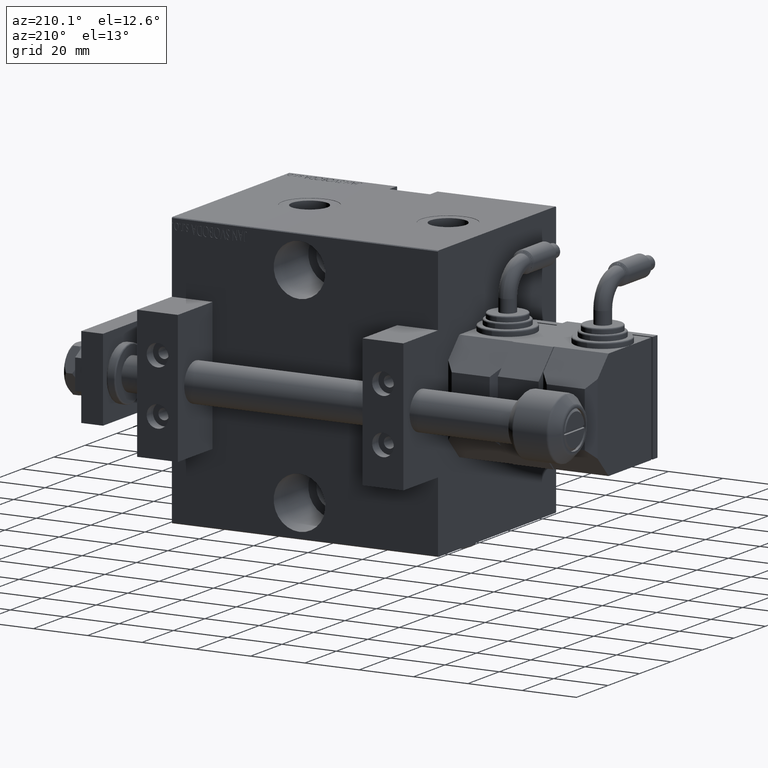
[diagram: clean part render]
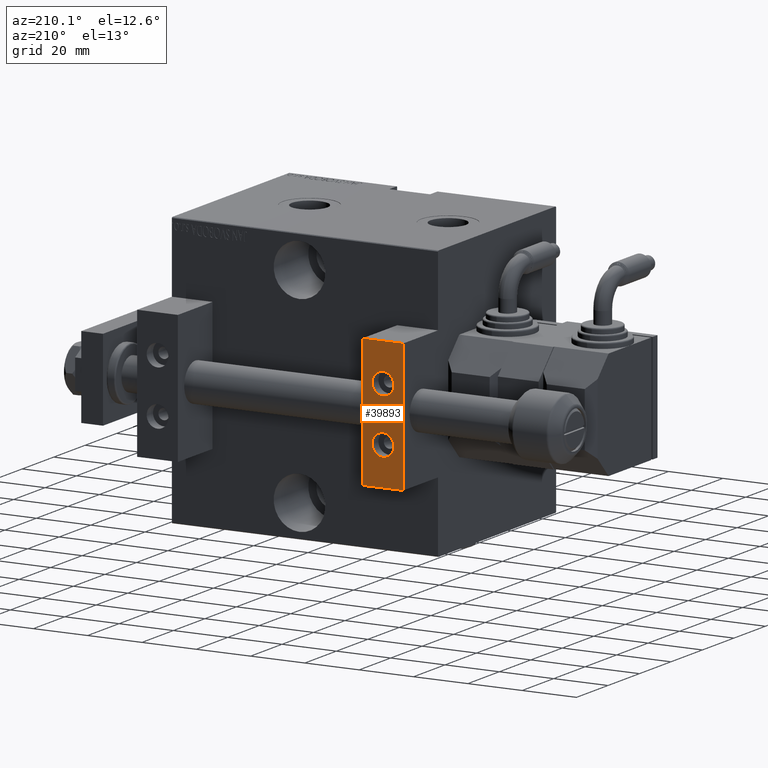
[diagram: same view with one face highlighted and labeled with its STEP entity id]
A machine part, auxiliary view. The second image highlights one B-rep face of the part: STEP entity #39893.
In plain terms, the highlighted planar face has unit normal (0, 1, 0).
Its self-contained STEP definition (entity closure, byte-faithful):
#608 = DIRECTION ( 'NONE',  ( 0.000000000000000000, 0.000000000000000000, 1.000000000000000000 ) ) ;
#1090 = AXIS2_PLACEMENT_3D ( 'NONE', #11851, #27658, #7958 ) ;
#1731 = CARTESIAN_POINT ( 'NONE',  ( 15.00000000000000000, 11.00000000000000355, 24.00000000000000711 ) ) ;
#3050 = PLANE ( 'NONE',  #1090 ) ;
#3723 = EDGE_CURVE ( 'NONE', #6100, #15285, #32963, .T. ) ;
#5107 = LINE ( 'NONE', #1731, #8745 ) ;
#6100 = VERTEX_POINT ( 'NONE', #14177 ) ;
#7586 = EDGE_CURVE ( 'NONE', #39028, #26604, #34290, .T. ) ;
#7958 = DIRECTION ( 'NONE',  ( 0.000000000000000000, -0.000000000000000000, 1.000000000000000000 ) ) ;
#8718 = DIRECTION ( 'NONE',  ( 0.000000000000000000, 0.000000000000000000, 1.000000000000000000 ) ) ;
#8745 = VECTOR ( 'NONE', #13149, 1000.000000000000000 ) ;
#8958 = VECTOR ( 'NONE', #42309, 1000.000000000000000 ) ;
#9226 = DIRECTION ( 'NONE',  ( 3.081487911019577365E-33, -1.000000000000000000, 4.418865812115433188E-17 ) ) ;
#9445 = DIRECTION ( 'NONE',  ( 0.000000000000000000, 1.000000000000000000, -6.065466699219605527E-17 ) ) ;
#10467 = CIRCLE ( 'NONE', #45242, 4.000000000000000888 ) ;
#10734 = VECTOR ( 'NONE', #49515, 1000.000000000000000 ) ;
#10813 = EDGE_CURVE ( 'NONE', #28198, #26604, #30971, .T. ) ;
#11686 = EDGE_CURVE ( 'NONE', #47696, #20175, #33107, .T. ) ;
#11851 = CARTESIAN_POINT ( 'NONE',  ( 15.00000000000000000, 11.00000000000000355, 24.00000000000000711 ) ) ;
#13116 = CARTESIAN_POINT ( 'NONE',  ( 7.500000000000001776, 11.00000000000000355, 10.00000000000000178 ) ) ;
#13149 = DIRECTION ( 'NONE',  ( -1.000000000000000000, -0.000000000000000000, -0.000000000000000000 ) ) ;
#14177 = CARTESIAN_POINT ( 'NONE',  ( 7.500000000000002665, 11.00000000000000355, 6.000000000000000888 ) ) ;
#15285 = VERTEX_POINT ( 'NONE', #45628 ) ;
#15707 = VECTOR ( 'NONE', #30714, 1000.000000000000000 ) ;
#15878 = CARTESIAN_POINT ( 'NONE',  ( 7.500000000000002665, 11.00000000000000355, -14.00000000000000178 ) ) ;
#17999 = CARTESIAN_POINT ( 'NONE',  ( 7.500000000000001776, 11.00000000000000355, -10.00000000000000178 ) ) ;
#18012 = ORIENTED_EDGE ( 'NONE', *, *, #50339, .F. ) ;
#18837 = EDGE_LOOP ( 'NONE', ( #30712, #24245 ) ) ;
#20175 = VERTEX_POINT ( 'NONE', #35555 ) ;
#22430 = CARTESIAN_POINT ( 'NONE',  ( 15.00000000000000000, 11.00000000000000355, -23.99999999999999289 ) ) ;
#24245 = ORIENTED_EDGE ( 'NONE', *, *, #3723, .T. ) ;
#25500 = DIRECTION ( 'NONE',  ( 0.000000000000000000, 0.000000000000000000, 1.000000000000000000 ) ) ;
#25517 = CARTESIAN_POINT ( 'NONE',  ( 0.000000000000000000, 11.00000000000000355, -23.99999999999999289 ) ) ;
#25524 = CARTESIAN_POINT ( 'NONE',  ( 7.500000000000001776, 11.00000000000000355, -10.00000000000000178 ) ) ;
#26604 = VERTEX_POINT ( 'NONE', #25517 ) ;
#27329 = DIRECTION ( 'NONE',  ( 3.081487911019577365E-33, -1.000000000000000000, 4.418865812115433188E-17 ) ) ;
#27658 = DIRECTION ( 'NONE',  ( -0.000000000000000000, 1.000000000000000000, 0.000000000000000000 ) ) ;
#28198 = VERTEX_POINT ( 'NONE', #39171 ) ;
#28285 = AXIS2_PLACEMENT_3D ( 'NONE', #31989, #27329, #608 ) ;
#29050 = EDGE_CURVE ( 'NONE', #50264, #28198, #33968, .T. ) ;
#30632 = CARTESIAN_POINT ( 'NONE',  ( 0.000000000000000000, 11.00000000000000355, 24.00000000000000711 ) ) ;
#30684 = EDGE_LOOP ( 'NONE', ( #49584, #39191 ) ) ;
#30712 = ORIENTED_EDGE ( 'NONE', *, *, #34025, .T. ) ;
#30714 = DIRECTION ( 'NONE',  ( -1.000000000000000000, -0.000000000000000000, -0.000000000000000000 ) ) ;
#30971 = LINE ( 'NONE', #22430, #15707 ) ;
#31989 = CARTESIAN_POINT ( 'NONE',  ( 7.500000000000001776, 11.00000000000000355, 10.00000000000000178 ) ) ;
#32242 = ORIENTED_EDGE ( 'NONE', *, *, #29050, .T. ) ;
#32963 = CIRCLE ( 'NONE', #33830, 4.000000000000000000 ) ;
#33078 = EDGE_LOOP ( 'NONE', ( #49854, #18012, #32242, #47187 ) ) ;
#33107 = CIRCLE ( 'NONE', #46345, 4.000000000000000888 ) ;
#33333 = DIRECTION ( 'NONE',  ( 0.000000000000000000, 0.000000000000000000, 1.000000000000000000 ) ) ;
#33830 = AXIS2_PLACEMENT_3D ( 'NONE', #13116, #9226, #8718 ) ;
#33968 = LINE ( 'NONE', #37599, #10734 ) ;
#34025 = EDGE_CURVE ( 'NONE', #15285, #6100, #44887, .T. ) ;
#34290 = LINE ( 'NONE', #30632, #8958 ) ;
#35555 = CARTESIAN_POINT ( 'NONE',  ( 7.500000000000001776, 11.00000000000000355, -6.000000000000000888 ) ) ;
#37599 = CARTESIAN_POINT ( 'NONE',  ( 15.00000000000000000, 11.00000000000000355, 24.00000000000000711 ) ) ;
#39028 = VERTEX_POINT ( 'NONE', #48115 ) ;
#39171 = CARTESIAN_POINT ( 'NONE',  ( 15.00000000000000000, 11.00000000000000355, -23.99999999999999289 ) ) ;
#39191 = ORIENTED_EDGE ( 'NONE', *, *, #11686, .F. ) ;
#39893 = ADVANCED_FACE ( 'NONE', ( #47363, #43483, #50750 ), #3050, .T. ) ;
#42309 = DIRECTION ( 'NONE',  ( 0.000000000000000000, 0.000000000000000000, -1.000000000000000000 ) ) ;
#43483 = FACE_BOUND ( 'NONE', #30684, .T. ) ;
#44887 = CIRCLE ( 'NONE', #28285, 4.000000000000000000 ) ;
#45242 = AXIS2_PLACEMENT_3D ( 'NONE', #17999, #9445, #25500 ) ;
#45628 = CARTESIAN_POINT ( 'NONE',  ( 7.500000000000001776, 11.00000000000000355, 14.00000000000000178 ) ) ;
#46345 = AXIS2_PLACEMENT_3D ( 'NONE', #25524, #49397, #33333 ) ;
#47187 = ORIENTED_EDGE ( 'NONE', *, *, #10813, .T. ) ;
#47363 = FACE_OUTER_BOUND ( 'NONE', #33078, .T. ) ;
#47696 = VERTEX_POINT ( 'NONE', #15878 ) ;
#48115 = CARTESIAN_POINT ( 'NONE',  ( 0.000000000000000000, 11.00000000000000355, 24.00000000000000711 ) ) ;
#48154 = CARTESIAN_POINT ( 'NONE',  ( 15.00000000000000000, 11.00000000000000355, 24.00000000000000711 ) ) ;
#48340 = EDGE_CURVE ( 'NONE', #20175, #47696, #10467, .T. ) ;
#49397 = DIRECTION ( 'NONE',  ( 0.000000000000000000, 1.000000000000000000, -6.065466699219605527E-17 ) ) ;
#49515 = DIRECTION ( 'NONE',  ( 0.000000000000000000, 0.000000000000000000, -1.000000000000000000 ) ) ;
#49584 = ORIENTED_EDGE ( 'NONE', *, *, #48340, .F. ) ;
#49854 = ORIENTED_EDGE ( 'NONE', *, *, #7586, .F. ) ;
#50264 = VERTEX_POINT ( 'NONE', #48154 ) ;
#50339 = EDGE_CURVE ( 'NONE', #50264, #39028, #5107, .T. ) ;
#50750 = FACE_BOUND ( 'NONE', #18837, .T. ) ;